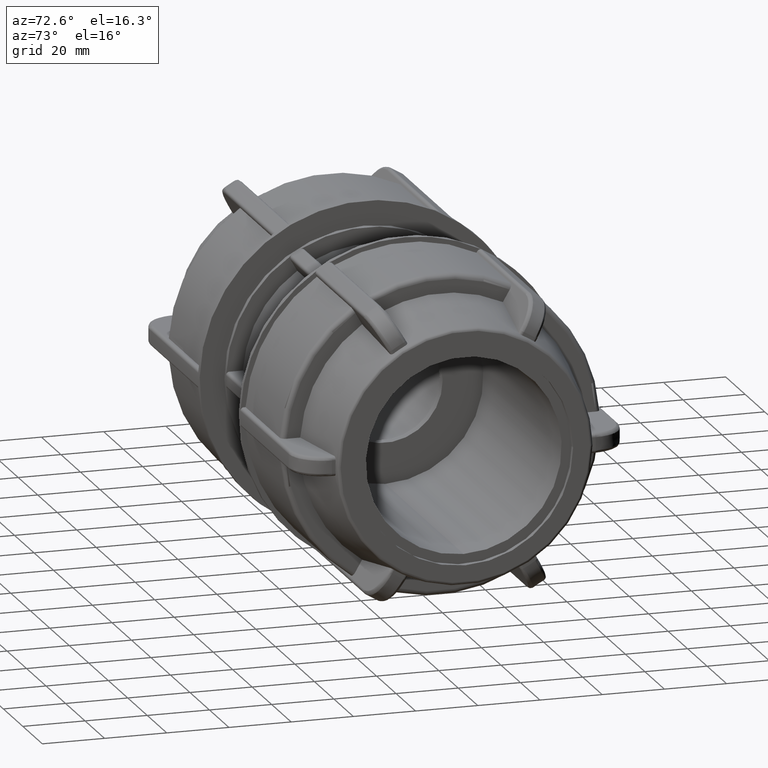
[diagram: clean part render]
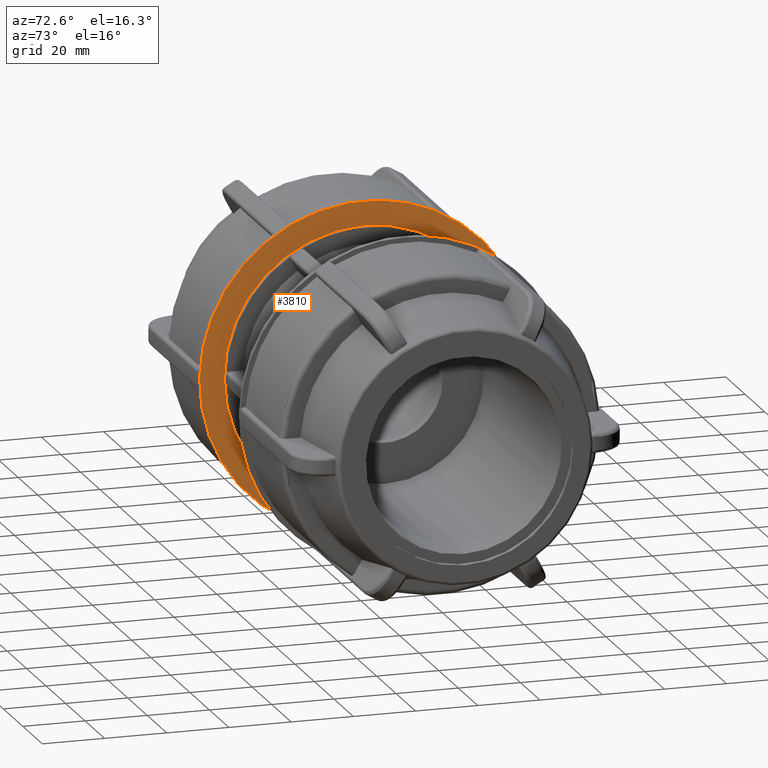
[diagram: same view with one face highlighted and labeled with its STEP entity id]
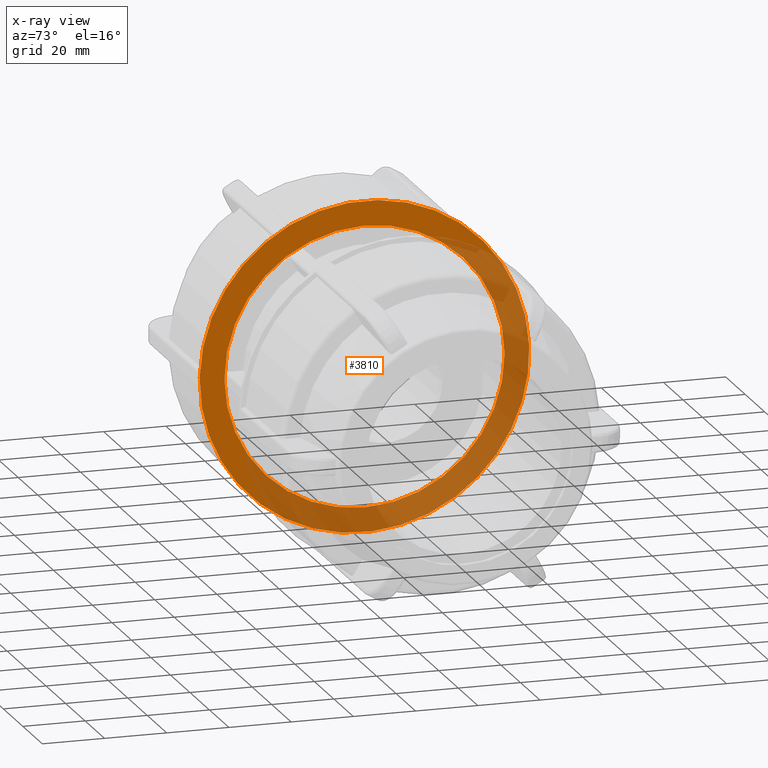
[diagram: x-ray of the same camera — body ghosted, the highlighted face saturated]
A machine part, auxiliary view. The second image highlights one B-rep face of the part: STEP entity #3810.
The next image is the same camera in x-ray: the body ghosted, the highlighted face saturated — about 52% of this face is hidden behind the body in this view.
In plain terms, the highlighted planar face has unit normal (-1, -0, 0).
Its self-contained STEP definition (entity closure, byte-faithful):
#199=FACE_BOUND('',#667,.T.);
#264=PLANE('',#4166);
#424=FACE_OUTER_BOUND('',#666,.T.);
#666=EDGE_LOOP('',(#3024));
#667=EDGE_LOOP('',(#3025));
#1258=CIRCLE('',#3938,45.05);
#1322=CIRCLE('',#4050,53.);
#1502=VERTEX_POINT('',#5522);
#1601=VERTEX_POINT('',#5923);
#1882=EDGE_CURVE('',#1502,#1502,#1258,.T.);
#2023=EDGE_CURVE('',#1601,#1601,#1322,.T.);
#3024=ORIENTED_EDGE('',*,*,#2023,.T.);
#3025=ORIENTED_EDGE('',*,*,#1882,.F.);
#3810=ADVANCED_FACE('',(#424,#199),#264,.F.);
#3938=AXIS2_PLACEMENT_3D('',#5523,#4407,#4408);
#4050=AXIS2_PLACEMENT_3D('',#5924,#4700,#4701);
#4166=AXIS2_PLACEMENT_3D('',#6760,#4989,#4990);
#4407=DIRECTION('center_axis',(1.,3.06161699786838E-16,0.));
#4408=DIRECTION('ref_axis',(0.,0.,-1.));
#4700=DIRECTION('center_axis',(1.,3.06161699786838E-16,0.));
#4701=DIRECTION('ref_axis',(0.,0.,-1.));
#4989=DIRECTION('center_axis',(-1.,-3.06161699786838E-16,0.));
#4990=DIRECTION('ref_axis',(0.,0.,1.));
#5522=CARTESIAN_POINT('',(-20.04,25.1978487353781,-37.3439542511101));
#5523=CARTESIAN_POINT('Origin',(-20.04,-6.13548046372825E-15,0.));
#5923=CARTESIAN_POINT('',(-20.04,29.1811343706938,-44.2432073525362));
#5924=CARTESIAN_POINT('Origin',(-20.04,-6.13548046372825E-15,0.));
#6760=CARTESIAN_POINT('Origin',(-20.04,53.,0.));